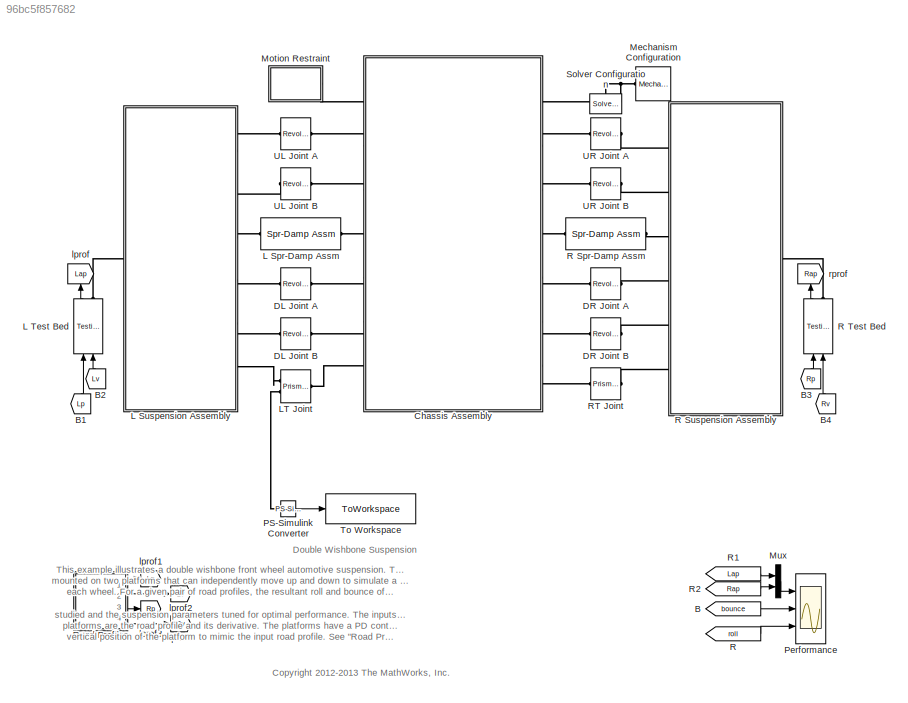
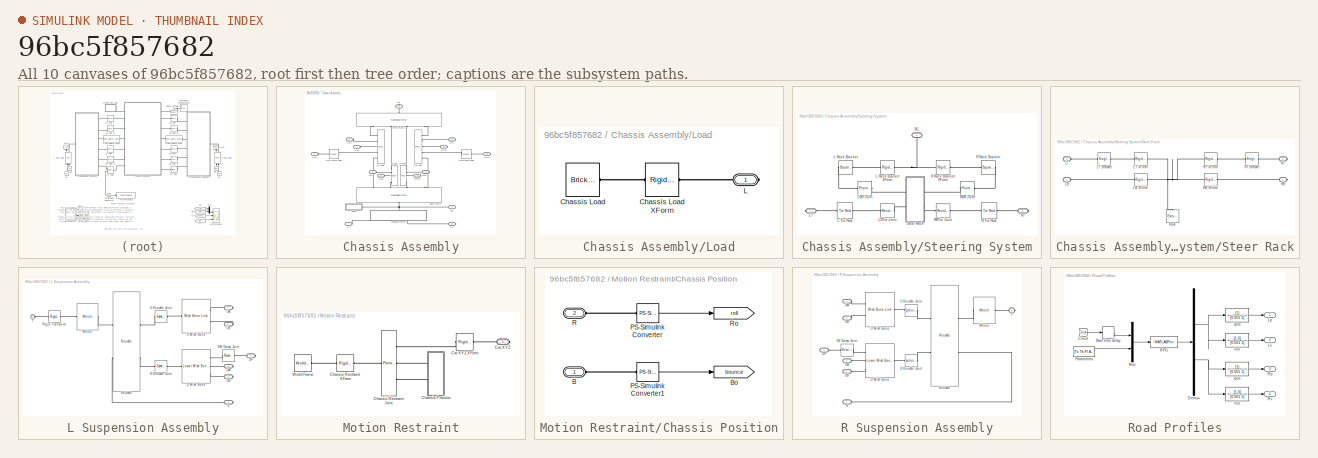
[diagram: thumbnail index - all 10 canvases of the model, root first then tree order]
MODEL slx_96bc5f857682
KIND model
CONFIG AbsTol = auto
CONFIG EnableMultiTasking = on
CONFIG FixedStep = auto
CONFIG MaxStep = 0.01
CONFIG MinStep = auto
CONFIG RelTol = 1e-3
CONFIG SampleTimeConstraint = Unconstrained
CONFIG Solver = ode15s
CONFIG SolverName = ode15s
CONFIG StartTime = 0.0
CONFIG StopTime = 60
WORKSPACE source: MATLAB code (in-file)
WORKSPACE dgrey = [0.3 0.3 0.3]
WORKSPACE lgrey = [0.6 0.6 0.6]
WORKSPACE orange = [255 140 0]/255
WORKSPACE blue = [0.0 0.6 0.8]
WORKSPACE brown = [0.3 0.2 0.0]
WORKSPACE lbrown = [167 108 52]/255
WORKSPACE yellow = [0.9 0.7 0.2]
WORKSPACE red = [1.0 0.2 0.2]
WORKSPACE black = [0 0 0]
WORKSPACE rho_alum = 2700
BLOCK [From] B
  GotoTag = bounce
  TagVisibility = global
BLOCK [From] B1
  GotoTag = Lp
  NameLocation = right
BLOCK [From] B2
  GotoTag = Lv
  NameLocation = right
BLOCK [From] B3
  GotoTag = Rp
  NameLocation = right
BLOCK [From] B4
  GotoTag = Rv
  NameLocation = right
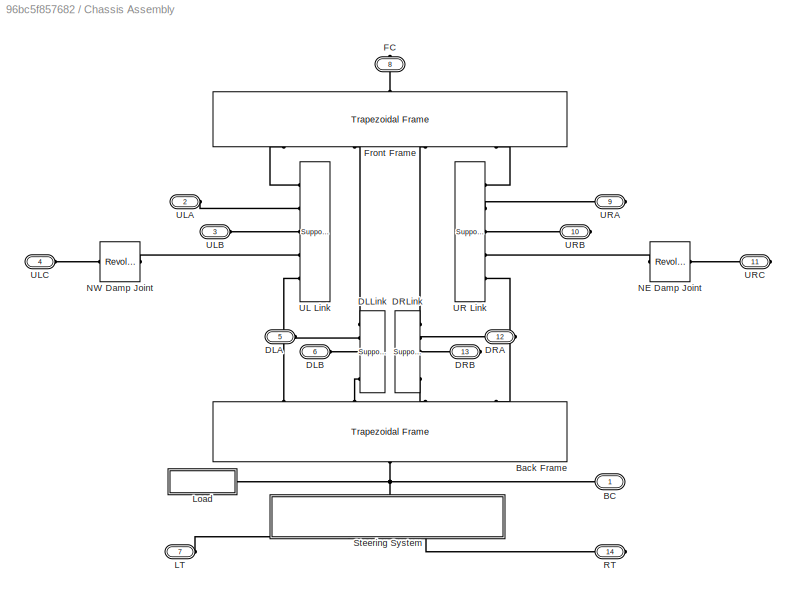
BLOCK [SubSystem] Chassis Assembly
  Ports = [0, 0, 0, 0, 0, 7, 7]
  RequestExecContextInheritance = off
BLOCK [PMIOPort] Chassis Assembly/BC
  Side = Left
BLOCK [Reference] Chassis Assembly/Back Frame  REF=sm_double_wishbone_suspension_lib/Trapezoidal Frame
  NameLocation = right
  Ports = [0, 0, 0, 0, 0, 4, 1]
  SourceBlock = sm_double_wishbone_suspension_lib/Trapezoidal Frame
  SourceProductBaseCode = MS
  SourceType = Trapeziodal Frame
BLOCK [PMIOPort] Chassis Assembly/DLA
  Port = 5
  Side = Left
BLOCK [PMIOPort] Chassis Assembly/DLB
  Port = 6
  Side = Left
BLOCK [Reference] Chassis Assembly/DLLink  REF=sm_double_wishbone_suspension_lib/Support Link
  NameLocation = top
  Ports = [0, 0, 0, 0, 0, 5]
  SourceBlock = sm_double_wishbone_suspension_lib/Support Link
  SourceProductBaseCode = MS
  SourceType = Support Link
BLOCK [PMIOPort] Chassis Assembly/DRA
  Port = 12
  Side = Right
BLOCK [PMIOPort] Chassis Assembly/DRB
  Port = 13
  Side = Right
BLOCK [Reference] Chassis Assembly/DRLink  REF=sm_double_wishbone_suspension_lib/Support Link
  NameLocation = top
  Ports = [0, 0, 0, 0, 0, 5]
  SourceBlock = sm_double_wishbone_suspension_lib/Support Link
  SourceProductBaseCode = MS
  SourceType = Support Link
BLOCK [PMIOPort] Chassis Assembly/FC
  NameLocation = right
  Port = 8
  Side = Right
BLOCK [Reference] Chassis Assembly/Front Frame  REF=sm_double_wishbone_suspension_lib/Trapezoidal Frame
  NameLocation = right
  Ports = [0, 0, 0, 0, 0, 4, 1]
  SourceBlock = sm_double_wishbone_suspension_lib/Trapezoidal Frame
  SourceProductBaseCode = MS
  SourceType = Trapeziodal Frame
BLOCK [PMIOPort] Chassis Assembly/LT
  Port = 7
  Side = Left
BLOCK [SubSystem] Chassis Assembly/Load
  Ports = [0, 0, 0, 0, 0, 0, 1]
  RequestExecContextInheritance = off
BLOCK [Reference] Chassis Assembly/Load/Chassis Load  REF=sm_lib/Body Elements/Brick Solid
  NameLocation = top
  Ports = [0, 0, 0, 0, 0, 0, 1]
  SourceBlock = sm_lib/Body Elements/Brick Solid
  SourceProductBaseCode = MS
  SourceType = Brick Solid
BLOCK [Reference] Chassis Assembly/Load/Chassis Load XForm  REF=sm_lib/Frames and
Transforms/Rigid
Transform
  NameLocation = top
  Ports = [0, 0, 0, 0, 0, 1, 1]
  SourceBlock = sm_lib/Frames and\nTransforms/Rigid\nTransform
  SourceProductBaseCode = MS
  SourceType = Rigid\nTransform
BLOCK [PMIOPort] Chassis Assembly/Load/L
  Side = Right
BLOCK [Reference] Chassis Assembly/NE Damp Joint  REF=sm_lib/Joints/Revolute Joint
  Ports = [0, 0, 0, 0, 0, 1, 1]
  SourceBlock = sm_lib/Joints/Revolute Joint
  SourceProductBaseCode = MS
  SourceType = Revolute Joint
BLOCK [Reference] Chassis Assembly/NW Damp Joint  REF=sm_lib/Joints/Revolute Joint
  Ports = [0, 0, 0, 0, 0, 1, 1]
  SourceBlock = sm_lib/Joints/Revolute Joint
  SourceProductBaseCode = MS
  SourceType = Revolute Joint
BLOCK [PMIOPort] Chassis Assembly/RT
  Port = 14
  Side = Right
BLOCK [SubSystem] Chassis Assembly/Steering System
  NameLocation = left
  Ports = [0, 0, 0, 0, 0, 1, 2]
  RequestExecContextInheritance = off
BLOCK [PMIOPort] Chassis Assembly/Steering System/BC
  NameLocation = right
  Side = Left
BLOCK [Reference] Chassis Assembly/Steering System/L Rack Bracket  REF=sm_double_wishbone_suspension_lib/Square Hole
Bracket
  Ports = [0, 0, 0, 0, 0, 1, 1]
  SourceBlock = sm_double_wishbone_suspension_lib/Square Hole\nBracket
  SourceProductBaseCode = MS
  SourceType = Bracket
BLOCK [Reference] Chassis Assembly/Steering System/L Rack Bracket XForm  REF=sm_lib/Frames and
Transforms/Rigid
Transform
  Ports = [0, 0, 0, 0, 0, 1, 1]
  SourceBlock = sm_lib/Frames and\nTransforms/Rigid\nTransform
  SourceProductBaseCode = MS
  SourceType = Rigid\nTransform
BLOCK [Reference] Chassis Assembly/Steering System/L Tie Rod  REF=sm_double_wishbone_suspension_lib/Tie Rod
  Ports = [0, 0, 0, 0, 0, 1, 1]
  SourceBlock = sm_double_wishbone_suspension_lib/Tie Rod
  SourceProductBaseCode = MS
  SourceType = Tie rod
BLOCK [Reference] Chassis Assembly/Steering System/LBR Joint  REF=sm_lib/Joints/Prismatic
Joint
  Ports = [0, 0, 0, 0, 0, 1, 1]
  SourceBlock = sm_lib/Joints/Prismatic\nJoint
  SourceProductBaseCode = MS
  SourceType = Prismatic\nJoint
BLOCK [Reference] Chassis Assembly/Steering System/LRTie Joint  REF=sm_lib/Joints/Revolute Joint
  Ports = [0, 0, 0, 0, 0, 1, 1]
  SourceBlock = sm_lib/Joints/Revolute Joint
  SourceProductBaseCode = MS
  SourceType = Revolute Joint
BLOCK [PMIOPort] Chassis Assembly/Steering System/LT
  Port = 2
  Side = Right
BLOCK [Reference] Chassis Assembly/Steering System/R Rack Bracket  REF=sm_double_wishbone_suspension_lib/Square Hole
Bracket
  Ports = [0, 0, 0, 0, 0, 1, 1]
  SourceBlock = sm_double_wishbone_suspension_lib/Square Hole\nBracket
  SourceProductBaseCode = MS
  SourceType = Bracket
BLOCK [Reference] Chassis Assembly/Steering System/R Rack Bracket XForm  REF=sm_lib/Frames and
Transforms/Rigid
Transform
  Ports = [0, 0, 0, 0, 0, 1, 1]
  SourceBlock = sm_lib/Frames and\nTransforms/Rigid\nTransform
  SourceProductBaseCode = MS
  SourceType = Rigid\nTransform
BLOCK [Reference] Chassis Assembly/Steering System/R Tie Rod  REF=sm_double_wishbone_suspension_lib/Tie Rod
  Ports = [0, 0, 0, 0, 0, 1, 1]
  SourceBlock = sm_double_wishbone_suspension_lib/Tie Rod
  SourceProductBaseCode = MS
  SourceType = Tie rod
BLOCK [Reference] Chassis Assembly/Steering System/RBR Joint  REF=sm_lib/Joints/Prismatic
Joint
  Ports = [0, 0, 0, 0, 0, 1, 1]
  SourceBlock = sm_lib/Joints/Prismatic\nJoint
  SourceProductBaseCode = MS
  SourceType = Prismatic\nJoint
BLOCK [Reference] Chassis Assembly/Steering System/RRTie Joint  REF=sm_lib/Joints/Revolute Joint
  Ports = [0, 0, 0, 0, 0, 1, 1]
  SourceBlock = sm_lib/Joints/Revolute Joint
  SourceProductBaseCode = MS
  SourceType = Revolute Joint
BLOCK [PMIOPort] Chassis Assembly/Steering System/RT
  Port = 3
  Side = Right
BLOCK [SubSystem] Chassis Assembly/Steering System/Steer Rack
  Ports = [0, 0, 0, 0, 0, 2, 2]
  RequestExecContextInheritance = off
BLOCK [PMIOPort] Chassis Assembly/Steering System/Steer Rack/LB
  NameLocation = top
  Side = Left
BLOCK [Reference] Chassis Assembly/Steering System/Steer Rack/LB XForm  REF=sm_lib/Frames and
Transforms/Rigid
Transform
  Ports = [0, 0, 0, 0, 0, 1, 1]
  SourceBlock = sm_lib/Frames and\nTransforms/Rigid\nTransform
  SourceProductBaseCode = MS
  SourceType = Rigid\nTransform
BLOCK [PMIOPort] Chassis Assembly/Steering System/Steer Rack/LT
  Port = 2
  Side = Left
BLOCK [Reference] Chassis Assembly/Steering System/Steer Rack/LT Bracket  REF=sm_double_wishbone_suspension_lib/Single
Bracket
  NameLocation = top
  Ports = [0, 0, 0, 0, 0, 1, 1]
  SourceBlock = sm_double_wishbone_suspension_lib/Single\nBracket
  SourceProductBaseCode = MS
  SourceType = Bracket
BLOCK [Reference] Chassis Assembly/Steering System/Steer Rack/LT XForm  REF=sm_lib/Frames and
Transforms/Rigid
Transform
  NameLocation = top
  Ports = [0, 0, 0, 0, 0, 1, 1]
  SourceBlock = sm_lib/Frames and\nTransforms/Rigid\nTransform
  SourceProductBaseCode = MS
  SourceType = Rigid\nTransform
BLOCK [PMIOPort] Chassis Assembly/Steering System/Steer Rack/RB
  NameLocation = top
  Port = 3
  Side = Right
BLOCK [Reference] Chassis Assembly/Steering System/Steer Rack/RB XForm  REF=sm_lib/Frames and
Transforms/Rigid
Transform
  Ports = [0, 0, 0, 0, 0, 1, 1]
  SourceBlock = sm_lib/Frames and\nTransforms/Rigid\nTransform
  SourceProductBaseCode = MS
  SourceType = Rigid\nTransform
BLOCK [PMIOPort] Chassis Assembly/Steering System/Steer Rack/RT
  Port = 4
  Side = Right
BLOCK [Reference] Chassis Assembly/Steering System/Steer Rack/RT Bracket  REF=sm_double_wishbone_suspension_lib/Single
Bracket
  NameLocation = top
  Ports = [0, 0, 0, 0, 0, 1, 1]
  SourceBlock = sm_double_wishbone_suspension_lib/Single\nBracket
  SourceProductBaseCode = MS
  SourceType = Bracket
BLOCK [Reference] Chassis Assembly/Steering System/Steer Rack/RT XForm  REF=sm_lib/Frames and
Transforms/Rigid
Transform
  NameLocation = top
  Ports = [0, 0, 0, 0, 0, 1, 1]
  SourceBlock = sm_lib/Frames and\nTransforms/Rigid\nTransform
  SourceProductBaseCode = MS
  SourceType = Rigid\nTransform
BLOCK [Reference] Chassis Assembly/Steering System/Steer Rack/Rack  REF=sm_lib/Body Elements/Extruded Solid
  NameLocation = right
  Ports = [0, 0, 0, 0, 0, 0, 1]
  SourceBlock = sm_lib/Body Elements/Extruded Solid
  SourceProductBaseCode = MS
  SourceType = Extruded Solid
BLOCK [Reference] Chassis Assembly/UL Link  REF=sm_double_wishbone_suspension_lib/Support Link
  Ports = [0, 0, 0, 0, 0, 5]
  SourceBlock = sm_double_wishbone_suspension_lib/Support Link
  SourceProductBaseCode = MS
  SourceType = Support Link
BLOCK [PMIOPort] Chassis Assembly/ULA
  Port = 2
  Side = Left
BLOCK [PMIOPort] Chassis Assembly/ULB
  Port = 3
  Side = Left
BLOCK [PMIOPort] Chassis Assembly/ULC
  Port = 4
  Side = Left
BLOCK [Reference] Chassis Assembly/UR Link  REF=sm_double_wishbone_suspension_lib/Support Link
  Ports = [0, 0, 0, 0, 0, 5]
  SourceBlock = sm_double_wishbone_suspension_lib/Support Link
  SourceProductBaseCode = MS
  SourceType = Support Link
BLOCK [PMIOPort] Chassis Assembly/URA
  Port = 9
  Side = Right
BLOCK [PMIOPort] Chassis Assembly/URB
  Port = 10
  Side = Right
BLOCK [PMIOPort] Chassis Assembly/URC
  Port = 11
  Side = Right
BLOCK [Reference] DL Joint A  REF=sm_lib/Joints/Revolute Joint
  Ports = [0, 0, 0, 0, 0, 1, 1]
  SourceBlock = sm_lib/Joints/Revolute Joint
  SourceProductBaseCode = MS
  SourceType = Revolute Joint
BLOCK [Reference] DL Joint B  REF=sm_lib/Joints/Revolute Joint
  Ports = [0, 0, 0, 0, 0, 1, 1]
  SourceBlock = sm_lib/Joints/Revolute Joint
  SourceProductBaseCode = MS
  SourceType = Revolute Joint
BLOCK [Reference] DR Joint A  REF=sm_lib/Joints/Revolute Joint
  Ports = [0, 0, 0, 0, 0, 1, 1]
  SourceBlock = sm_lib/Joints/Revolute Joint
  SourceProductBaseCode = MS
  SourceType = Revolute Joint
BLOCK [Reference] DR Joint B  REF=sm_lib/Joints/Revolute Joint
  Ports = [0, 0, 0, 0, 0, 1, 1]
  SourceBlock = sm_lib/Joints/Revolute Joint
  SourceProductBaseCode = MS
  SourceType = Revolute Joint
BLOCK [Reference] L Spr-Damp Assm  REF=sm_double_wishbone_suspension_lib/Spr-Damp Assm
  Ports = [0, 0, 0, 0, 0, 1, 1]
  SourceBlock = sm_double_wishbone_suspension_lib/Spr-Damp Assm
  SourceProductBaseCode = MS
  SourceType = Spring-Damper
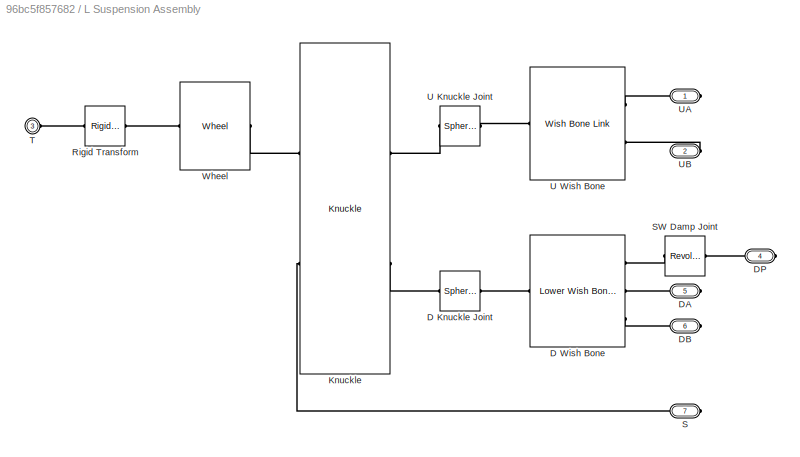
BLOCK [SubSystem] L Suspension Assembly
  Ports = [0, 0, 0, 0, 0, 1, 6]
  RequestExecContextInheritance = off
BLOCK [Reference] L Suspension Assembly/D Knuckle Joint  REF=sm_lib/Joints/Spherical
Joint
  Ports = [0, 0, 0, 0, 0, 1, 1]
  SourceBlock = sm_lib/Joints/Spherical\nJoint
  SourceProductBaseCode = MS
  SourceType = Spherical\nJoint
BLOCK [Reference] L Suspension Assembly/D Wish Bone  REF=sm_double_wishbone_suspension_lib/Lower Wish Bone Link
  NameLocation = top
  Ports = [0, 0, 0, 0, 0, 3, 1]
  SourceBlock = sm_double_wishbone_suspension_lib/Lower Wish Bone Link
  SourceProductBaseCode = MS
  SourceType = Upper Wishbone Link
BLOCK [PMIOPort] L Suspension Assembly/DA
  Port = 5
  Side = Right
BLOCK [PMIOPort] L Suspension Assembly/DB
  Port = 6
  Side = Right
BLOCK [PMIOPort] L Suspension Assembly/DP
  Port = 4
  Side = Right
BLOCK [Reference] L Suspension Assembly/Knuckle  REF=sm_double_wishbone_suspension_lib/Knuckle
  Ports = [0, 0, 0, 0, 0, 2, 2]
  SourceBlock = sm_double_wishbone_suspension_lib/Knuckle
  SourceProductBaseCode = MS
  SourceType = Steering knuckle
BLOCK [Reference] L Suspension Assembly/Rigid Transform  REF=sm_lib/Frames and
Transforms/Rigid
Transform
  NameLocation = top
  Ports = [0, 0, 0, 0, 0, 1, 1]
  SourceBlock = sm_lib/Frames and\nTransforms/Rigid\nTransform
  SourceProductBaseCode = MS
  SourceType = Rigid\nTransform
BLOCK [PMIOPort] L Suspension Assembly/S
  Port = 7
  Side = Right
BLOCK [Reference] L Suspension Assembly/SW Damp Joint  REF=sm_lib/Joints/Revolute Joint
  NameLocation = top
  Ports = [0, 0, 0, 0, 0, 1, 1]
  SourceBlock = sm_lib/Joints/Revolute Joint
  SourceProductBaseCode = MS
  SourceType = Revolute Joint
BLOCK [PMIOPort] L Suspension Assembly/T
  Port = 3
  Side = Left
BLOCK [Reference] L Suspension Assembly/U Knuckle Joint  REF=sm_lib/Joints/Spherical
Joint
  Ports = [0, 0, 0, 0, 0, 1, 1]
  SourceBlock = sm_lib/Joints/Spherical\nJoint
  SourceProductBaseCode = MS
  SourceType = Spherical\nJoint
BLOCK [Reference] L Suspension Assembly/U Wish Bone  REF=sm_double_wishbone_suspension_lib/Wish Bone Link
  NameLocation = top
  Ports = [0, 0, 0, 0, 0, 2, 1]
  SourceBlock = sm_double_wishbone_suspension_lib/Wish Bone Link
  SourceProductBaseCode = MS
  SourceType = Upper Wishbone Link
BLOCK [PMIOPort] L Suspension Assembly/UA
  Side = Right
BLOCK [PMIOPort] L Suspension Assembly/UB
  Port = 2
  Side = Right
BLOCK [Reference] L Suspension Assembly/Wheel  REF=sm_double_wishbone_suspension_lib/Wheel
  NameLocation = top
  Ports = [0, 0, 0, 0, 0, 1, 1]
  SourceBlock = sm_double_wishbone_suspension_lib/Wheel
  SourceProductBaseCode = MS
  SourceType = Wheel
BLOCK [Reference] L Test Bed  REF=sm_double_wishbone_suspension_lib/Testing
Platform
  NameLocation = right
  Ports = [2, 1, 0, 0, 0, 0, 1]
  SourceBlock = sm_double_wishbone_suspension_lib/Testing\nPlatform
  SourceProductBaseCode = MS
  SourceType = Suspension Test Platform
BLOCK [Reference] LT Joint  REF=sm_lib/Joints/Prismatic
Joint
  Ports = [0, 0, 0, 0, 0, 1, 2]
  SourceBlock = sm_lib/Joints/Prismatic\nJoint
  SourceProductBaseCode = MS
  SourceType = Prismatic\nJoint
BLOCK [Reference] Mechanism Configuration  REF=sm_lib/Utilities/Mechanism
Configuration
  NameLocation = top
  Ports = [0, 0, 0, 0, 0, 0, 1]
  SourceBlock = sm_lib/Utilities/Mechanism\nConfiguration
  SourceProductBaseCode = MS
  SourceType = Mechanism\nConfiguration
BLOCK [SubSystem] Motion Restraint
  Ports = [0, 0, 0, 0, 0, 0, 1]
  RequestExecContextInheritance = off
BLOCK [PMIOPort] Motion Restraint/Car XYZ
  Side = Right
BLOCK [Reference] Motion Restraint/Car XYZ XForm  REF=sm_lib/Frames and
Transforms/Rigid
Transform
  Ports = [0, 0, 0, 0, 0, 1, 1]
  SourceBlock = sm_lib/Frames and\nTransforms/Rigid\nTransform
  SourceProductBaseCode = MS
  SourceType = Rigid\nTransform
BLOCK [SubSystem] Motion Restraint/Chassis Position
  Ports = [0, 0, 0, 0, 0, 2]
  RequestExecContextInheritance = off
BLOCK [PMIOPort] Motion Restraint/Chassis Position/B
  NameLocation = top
  Side = Left
BLOCK [Goto] Motion Restraint/Chassis Position/Bo
  GotoTag = bounce
  TagVisibility = global
BLOCK [Reference] Motion Restraint/Chassis Position/PS-Simulink Converter  REF=nesl_utility/PS-Simulink
Converter
  Ports = [0, 1, 0, 0, 0, 1]
  SourceBlock = nesl_utility/PS-Simulink\nConverter
  SourceProductBaseCode = SS
  SourceType = PS-Simulink\nConverter
BLOCK [Reference] Motion Restraint/Chassis Position/PS-Simulink Converter1  REF=nesl_utility/PS-Simulink
Converter
  Ports = [0, 1, 0, 0, 0, 1]
  SourceBlock = nesl_utility/PS-Simulink\nConverter
  SourceProductBaseCode = SS
  SourceType = PS-Simulink\nConverter
BLOCK [PMIOPort] Motion Restraint/Chassis Position/R
  NameLocation = top
  Port = 2
  Side = Left
BLOCK [Goto] Motion Restraint/Chassis Position/Ro
  GotoTag = roll
  TagVisibility = global
BLOCK [Reference] Motion Restraint/Chassis Restraint Joint  REF=sm_lib/Joints/Planar Joint
  Ports = [0, 0, 0, 0, 0, 1, 3]
  SourceBlock = sm_lib/Joints/Planar Joint
  SourceProductBaseCode = MS
  SourceType = Planar Joint
BLOCK [Reference] Motion Restraint/Chassis Restraint XForm  REF=sm_lib/Frames and
Transforms/Rigid
Transform
  NameLocation = top
  Ports = [0, 0, 0, 0, 0, 1, 1]
  SourceBlock = sm_lib/Frames and\nTransforms/Rigid\nTransform
  SourceProductBaseCode = MS
  SourceType = Rigid\nTransform
BLOCK [Reference] Motion Restraint/World Frame  REF=sm_lib/Frames and
Transforms/World Frame
  NameLocation = top
  Ports = [0, 0, 0, 0, 0, 0, 1]
  SourceBlock = sm_lib/Frames and\nTransforms/World Frame
  SourceProductBaseCode = MS
  SourceType = World Frame
BLOCK [Mux] Mux
  DisplayOption = bar
  Inputs = 2
  Ports = [2, 1]
BLOCK [Reference] PS-Simulink Converter  REF=nesl_utility/PS-Simulink
Converter
  Ports = [0, 1, 0, 0, 0, 1]
  SourceBlock = nesl_utility/PS-Simulink\nConverter
  SourceProductBaseCode = SS
  SourceType = PS-Simulink\nConverter
BLOCK [Scope] Performance
  Floating = off
  NameLocation = top
  NumInputPorts = 3
  Ports = [3]
  ScopeSpecificationString = C++SS(StrPVP('Location','[267, 106, 869, 573]'),StrPVP('Open','off'),MxPVP('AxesTitles',54,'struct(''axes1'',''Left (yellow) and Right Road Profiles (cm)'',''axes2'',''Chassis Bounce (cm)'',''axes3'',''Chassis Roll (deg)'')'),MxPVP('ScopeGraphics',57,'struct(''FigureColor'',''[0.156862745098039 0.156862745098039 0.156862745098039]'',''AxesColor'',''[0 0 0]'',''AxesTickColor'',''[0.686274509803922 ...<+474ch>
BLOCK [From] R
  GotoTag = roll
  TagVisibility = global
BLOCK [Reference] R Spr-Damp Assm  REF=sm_double_wishbone_suspension_lib/Spr-Damp Assm
  Ports = [0, 0, 0, 0, 0, 1, 1]
  SourceBlock = sm_double_wishbone_suspension_lib/Spr-Damp Assm
  SourceProductBaseCode = MS
  SourceType = Spring-Damper
BLOCK [SubSystem] R Suspension Assembly
  Ports = [0, 0, 0, 0, 0, 6, 1]
  RequestExecContextInheritance = off
BLOCK [Reference] R Suspension Assembly/D Knuckle Joint  REF=sm_lib/Joints/Spherical
Joint
  Ports = [0, 0, 0, 0, 0, 1, 1]
  SourceBlock = sm_lib/Joints/Spherical\nJoint
  SourceProductBaseCode = MS
  SourceType = Spherical\nJoint
BLOCK [Reference] R Suspension Assembly/D Wish Bone  REF=sm_double_wishbone_suspension_lib/Lower Wish Bone Link
  Ports = [0, 0, 0, 0, 0, 3, 1]
  SourceBlock = sm_double_wishbone_suspension_lib/Lower Wish Bone Link
  SourceProductBaseCode = MS
  SourceType = Upper Wishbone Link
BLOCK [PMIOPort] R Suspension Assembly/DA
  Port = 5
  Side = Left
BLOCK [PMIOPort] R Suspension Assembly/DB
  Port = 6
  Side = Left
BLOCK [PMIOPort] R Suspension Assembly/DP
  Port = 4
  Side = Left
BLOCK [Reference] R Suspension Assembly/Knuckle  REF=sm_double_wishbone_suspension_lib/Knuckle
  Ports = [0, 0, 0, 0, 0, 2, 2]
  SourceBlock = sm_double_wishbone_suspension_lib/Knuckle
  SourceProductBaseCode = MS
  SourceType = Steering knuckle
BLOCK [PMIOPort] R Suspension Assembly/S
  NameLocation = top
  Port = 7
  Side = Left
BLOCK [Reference] R Suspension Assembly/SE Damp Joint  REF=sm_lib/Joints/Revolute Joint
  NameLocation = top
  Ports = [0, 0, 0, 0, 0, 1, 1]
  SourceBlock = sm_lib/Joints/Revolute Joint
  SourceProductBaseCode = MS
  SourceType = Revolute Joint
BLOCK [PMIOPort] R Suspension Assembly/T
  NameLocation = top
  Port = 3
  Side = Right
BLOCK [Reference] R Suspension Assembly/U Knuckle Joint  REF=sm_lib/Joints/Spherical
Joint
  Ports = [0, 0, 0, 0, 0, 1, 1]
  SourceBlock = sm_lib/Joints/Spherical\nJoint
  SourceProductBaseCode = MS
  SourceType = Spherical\nJoint
BLOCK [Reference] R Suspension Assembly/U Wish Bone  REF=sm_double_wishbone_suspension_lib/Wish Bone Link
  NameLocation = top
  Ports = [0, 0, 0, 0, 0, 2, 1]
  SourceBlock = sm_double_wishbone_suspension_lib/Wish Bone Link
  SourceProductBaseCode = MS
  SourceType = Upper Wishbone Link
BLOCK [PMIOPort] R Suspension Assembly/UA
  Side = Left
BLOCK [PMIOPort] R Suspension Assembly/UB
  Port = 2
  Side = Left
BLOCK [Reference] R Suspension Assembly/Wheel  REF=sm_double_wishbone_suspension_lib/Wheel
  Ports = [0, 0, 0, 0, 0, 1, 1]
  SourceBlock = sm_double_wishbone_suspension_lib/Wheel
  SourceProductBaseCode = MS
  SourceType = Wheel
BLOCK [Reference] R Test Bed  REF=sm_double_wishbone_suspension_lib/Testing
Platform
  NameLocation = left
  Ports = [2, 1, 0, 0, 0, 0, 1]
  SourceBlock = sm_double_wishbone_suspension_lib/Testing\nPlatform
  SourceProductBaseCode = MS
  SourceType = Suspension Test Platform
BLOCK [From] R1
  GotoTag = Lap
BLOCK [From] R2
  GotoTag = Rap
BLOCK [Reference] RT Joint  REF=sm_lib/Joints/Prismatic
Joint
  Ports = [0, 0, 0, 0, 0, 1, 1]
  SourceBlock = sm_lib/Joints/Prismatic\nJoint
  SourceProductBaseCode = MS
  SourceType = Prismatic\nJoint
BLOCK [SubSystem] Road Profiles
  NameLocation = top
  Ports = [0, 4]
  RequestExecContextInheritance = off
BLOCK [Clock] Road Profiles/Clock
BLOCK [Demux] Road Profiles/Demux
  Outputs = 2
  Ports = [1, 2]
BLOCK [Outport] Road Profiles/Lp
  VectorParamsAs1DForOutWhenUnconnected = off
BLOCK [Outport] Road Profiles/Lv
  Port = 2
  VectorParamsAs1DForOutWhenUnconnected = off
BLOCK [Mux] Road Profiles/Mux
  DisplayOption = bar
  Inputs = 2
  Ports = [2, 1]
BLOCK [Constant] Road Profiles/Parameters
  Value = [Ts Tb Fl Al Fm Am Fh Ah Ps As Pp Wp Ap Ad]
BLOCK [MATLABFcn] Road Profiles/RPG
  MATLABFcn = sm_dwb_roadgen(u)
  Ports = [1, 1]
BLOCK [Outport] Road Profiles/Rp
  Port = 3
  VectorParamsAs1DForOutWhenUnconnected = off
BLOCK [Outport] Road Profiles/Rv
  Port = 4
  VectorParamsAs1DForOutWhenUnconnected = off
BLOCK [TransportDelay] Road Profiles/Start time delay
  DelayTime = Ti
  Ports = [1, 1]
BLOCK [TransferFcn] Road Profiles/lpos
  Denominator = [0.001 1]
BLOCK [TransferFcn] Road Profiles/lvel
  Denominator = [0.001 1]
  Numerator = [1 0]
BLOCK [TransferFcn] Road Profiles/rpos
  Denominator = [0.001 1]
BLOCK [TransferFcn] Road Profiles/rvel
  Denominator = [0.001 1]
  Numerator = [1 0]
BLOCK [Reference] Solver Configuration  REF=nesl_utility/Solver
Configuration
  NameLocation = right
  Ports = [0, 0, 0, 0, 0, 0, 1]
  SourceBlock = nesl_utility/Solver\nConfiguration
  SourceProductBaseCode = SS
  SourceType = Solver\nConfiguration
BLOCK [ToWorkspace] To Workspace
  FixptAsFi = on
  MaxDataPoints = inf
  Ports = [1]
  SampleTime = -1
  SaveFormat = Timeseries
  VariableName = simout
BLOCK [Reference] UL Joint A  REF=sm_lib/Joints/Revolute Joint
  Ports = [0, 0, 0, 0, 0, 1, 1]
  SourceBlock = sm_lib/Joints/Revolute Joint
  SourceProductBaseCode = MS
  SourceType = Revolute Joint
BLOCK [Reference] UL Joint B  REF=sm_lib/Joints/Revolute Joint
  Ports = [0, 0, 0, 0, 0, 1, 1]
  SourceBlock = sm_lib/Joints/Revolute Joint
  SourceProductBaseCode = MS
  SourceType = Revolute Joint
BLOCK [Reference] UR Joint A  REF=sm_lib/Joints/Revolute Joint
  Ports = [0, 0, 0, 0, 0, 1, 1]
  SourceBlock = sm_lib/Joints/Revolute Joint
  SourceProductBaseCode = MS
  SourceType = Revolute Joint
BLOCK [Reference] UR Joint B  REF=sm_lib/Joints/Revolute Joint
  Ports = [0, 0, 0, 0, 0, 1, 1]
  SourceBlock = sm_lib/Joints/Revolute Joint
  SourceProductBaseCode = MS
  SourceType = Revolute Joint
BLOCK [Goto] lprof
  GotoTag = Lap
  NameLocation = right
BLOCK [Goto] lprof1
  GotoTag = Lp
BLOCK [Goto] lprof2
  GotoTag = Lv
BLOCK [Goto] lprof3
  GotoTag = Rp
BLOCK [Goto] lprof4
  GotoTag = Rv
BLOCK [Goto] rprof
  GotoTag = Rap
  NameLocation = right
ANNOTATION (root): <copyright redacted>
ANNOTATION (root): Double Wishbone Suspension
ANNOTATION (root): This example illustrates a double wishbone front wheel automotive suspension. The suspension is mounted on two platforms that can independently move up and down to simulate a road profile on each wheel. For a given pair of road profiles, the resultant roll and bounce of the chassis can be studied and the suspension parameters tuned for optimal performance. The inputs to the two platforms are the r...<+223ch>
LINE B1:1 -> L Test Bed:1
LINE B2:1 -> L Test Bed:2
LINE B3:1 -> R Test Bed:1
LINE B4:1 -> R Test Bed:2
LINE B:1 -> Performance:2
LINE L Test Bed:1 -> lprof:1
LINE Motion Restraint/Chassis Position/PS-Simulink Converter1:1 -> Motion Restraint/Chassis Position/Bo:1
LINE Motion Restraint/Chassis Position/PS-Simulink Converter:1 -> Motion Restraint/Chassis Position/Ro:1
LINE Mux:1 -> Performance:1
LINE PS-Simulink Converter:1 -> To Workspace:1
LINE R Test Bed:1 -> rprof:1
LINE R1:1 -> Mux:1
LINE R2:1 -> Mux:2
LINE R:1 -> Performance:3
LINE Road Profiles/Clock:1 -> Road Profiles/Start time delay:1
NET Road Profiles/Demux:1 -> Road Profiles/lpos:1, Road Profiles/lvel:1
NET Road Profiles/Demux:2 -> Road Profiles/rpos:1, Road Profiles/rvel:1
LINE Road Profiles/Mux:1 -> Road Profiles/RPG:1
LINE Road Profiles/Parameters:1 -> Road Profiles/Mux:2
LINE Road Profiles/RPG:1 -> Road Profiles/Demux:1
LINE Road Profiles/Start time delay:1 -> Road Profiles/Mux:1
LINE Road Profiles/lpos:1 -> Road Profiles/Lp:1
LINE Road Profiles/lvel:1 -> Road Profiles/Lv:1
LINE Road Profiles/rpos:1 -> Road Profiles/Rp:1
LINE Road Profiles/rvel:1 -> Road Profiles/Rv:1
LINE Road Profiles:1 -> lprof1:1
LINE Road Profiles:2 -> lprof2:1
LINE Road Profiles:3 -> lprof3:1
LINE Road Profiles:4 -> lprof4:1
PNET net1: Chassis Assembly/BC:RConn1 -- Chassis Assembly/Back Frame:RConn1 -- Chassis Assembly/Load:RConn1 -- Chassis Assembly/Steering System:LConn1
PLINE Chassis Assembly/Back Frame:LConn1 -- Chassis Assembly/UL Link:LConn5
PLINE Chassis Assembly/Back Frame:LConn2 -- Chassis Assembly/DLLink:LConn5
PLINE Chassis Assembly/Back Frame:LConn3 -- Chassis Assembly/DRLink:LConn5
PLINE Chassis Assembly/Back Frame:LConn4 -- Chassis Assembly/UR Link:LConn5
PLINE Chassis Assembly/DLA:RConn1 -- Chassis Assembly/DLLink:LConn2
PLINE Chassis Assembly/DLB:RConn1 -- Chassis Assembly/DLLink:LConn3
PLINE Chassis Assembly/DLLink:LConn1 -- Chassis Assembly/Front Frame:LConn2
PLINE Chassis Assembly/DRA:RConn1 -- Chassis Assembly/DRLink:LConn2
PLINE Chassis Assembly/DRB:RConn1 -- Chassis Assembly/DRLink:LConn3
PLINE Chassis Assembly/DRLink:LConn1 -- Chassis Assembly/Front Frame:LConn3
PLINE Chassis Assembly/FC:RConn1 -- Chassis Assembly/Front Frame:RConn1
PLINE Chassis Assembly/Front Frame:LConn1 -- Chassis Assembly/UL Link:LConn1
PLINE Chassis Assembly/Front Frame:LConn4 -- Chassis Assembly/UR Link:LConn1
PLINE Chassis Assembly/LT:RConn1 -- Chassis Assembly/Steering System:RConn1
PLINE Chassis Assembly/Load/Chassis Load XForm:LConn1 -- Chassis Assembly/Load/L:RConn1
PLINE Chassis Assembly/Load/Chassis Load XForm:RConn1 -- Chassis Assembly/Load/Chassis Load:RConn1
PLINE Chassis Assembly/NE Damp Joint:LConn1 -- Chassis Assembly/UR Link:LConn4
PLINE Chassis Assembly/NE Damp Joint:RConn1 -- Chassis Assembly/URC:RConn1
PLINE Chassis Assembly/NW Damp Joint:LConn1 -- Chassis Assembly/UL Link:LConn4
PLINE Chassis Assembly/NW Damp Joint:RConn1 -- Chassis Assembly/ULC:RConn1
PLINE Chassis Assembly/RT:RConn1 -- Chassis Assembly/Steering System:RConn2
PNET net2: Chassis Assembly/Steering System/BC:RConn1 -- Chassis Assembly/Steering System/L Rack Bracket XForm:LConn1 -- Chassis Assembly/Steering System/R Rack Bracket XForm:LConn1
PLINE Chassis Assembly/Steering System/L Rack Bracket XForm:RConn1 -- Chassis Assembly/Steering System/L Rack Bracket:LConn1
PLINE Chassis Assembly/Steering System/L Rack Bracket:RConn1 -- Chassis Assembly/Steering System/LBR Joint:LConn1
PLINE Chassis Assembly/Steering System/L Tie Rod:LConn1 -- Chassis Assembly/Steering System/LRTie Joint:RConn1
PLINE Chassis Assembly/Steering System/L Tie Rod:RConn1 -- Chassis Assembly/Steering System/LT:RConn1
PLINE Chassis Assembly/Steering System/LBR Joint:RConn1 -- Chassis Assembly/Steering System/Steer Rack:LConn1
PLINE Chassis Assembly/Steering System/LRTie Joint:LConn1 -- Chassis Assembly/Steering System/Steer Rack:LConn2
PLINE Chassis Assembly/Steering System/R Rack Bracket XForm:RConn1 -- Chassis Assembly/Steering System/R Rack Bracket:LConn1
PLINE Chassis Assembly/Steering System/R Rack Bracket:RConn1 -- Chassis Assembly/Steering System/RBR Joint:RConn1
PLINE Chassis Assembly/Steering System/R Tie Rod:LConn1 -- Chassis Assembly/Steering System/RRTie Joint:RConn1
PLINE Chassis Assembly/Steering System/R Tie Rod:RConn1 -- Chassis Assembly/Steering System/RT:RConn1
PLINE Chassis Assembly/Steering System/RBR Joint:LConn1 -- Chassis Assembly/Steering System/Steer Rack:RConn1
PLINE Chassis Assembly/Steering System/RRTie Joint:LConn1 -- Chassis Assembly/Steering System/Steer Rack:RConn2
PNET net3: Chassis Assembly/Steering System/Steer Rack/LB XForm:LConn1 -- Chassis Assembly/Steering System/Steer Rack/LT XForm:LConn1 -- Chassis Assembly/Steering System/Steer Rack/RB XForm:LConn1 -- Chassis Assembly/Steering System/Steer Rack/RT XForm:LConn1 -- Chassis Assembly/Steering System/Steer Rack/Rack:RConn1
PLINE Chassis Assembly/Steering System/Steer Rack/LB XForm:RConn1 -- Chassis Assembly/Steering System/Steer Rack/LB:RConn1
PLINE Chassis Assembly/Steering System/Steer Rack/LT Bracket:LConn1 -- Chassis Assembly/Steering System/Steer Rack/LT:RConn1
PLINE Chassis Assembly/Steering System/Steer Rack/LT Bracket:RConn1 -- Chassis Assembly/Steering System/Steer Rack/LT XForm:RConn1
PLINE Chassis Assembly/Steering System/Steer Rack/RB XForm:RConn1 -- Chassis Assembly/Steering System/Steer Rack/RB:RConn1
PLINE Chassis Assembly/Steering System/Steer Rack/RT Bracket:LConn1 -- Chassis Assembly/Steering System/Steer Rack/RT:RConn1
PLINE Chassis Assembly/Steering System/Steer Rack/RT Bracket:RConn1 -- Chassis Assembly/Steering System/Steer Rack/RT XForm:RConn1
PLINE Chassis Assembly/UL Link:LConn2 -- Chassis Assembly/ULA:RConn1
PLINE Chassis Assembly/UL Link:LConn3 -- Chassis Assembly/ULB:RConn1
PLINE Chassis Assembly/UR Link:LConn2 -- Chassis Assembly/URA:RConn1
PLINE Chassis Assembly/UR Link:LConn3 -- Chassis Assembly/URB:RConn1
PLINE Chassis Assembly:LConn1 -- Motion Restraint:RConn1
PLINE Chassis Assembly:LConn2 -- UL Joint A:LConn1
PLINE Chassis Assembly:LConn3 -- UL Joint B:LConn1
PLINE Chassis Assembly:LConn4 -- L Spr-Damp Assm:LConn1
PLINE Chassis Assembly:LConn5 -- DL Joint A:LConn1
PLINE Chassis Assembly:LConn6 -- DL Joint B:LConn1
PLINE Chassis Assembly:LConn7 -- LT Joint:LConn1
PNET net4: Chassis Assembly:RConn1 -- Mechanism Configuration:RConn1 -- Solver Configuration:RConn1
PLINE Chassis Assembly:RConn2 -- UR Joint A:LConn1
PLINE Chassis Assembly:RConn3 -- UR Joint B:LConn1
PLINE Chassis Assembly:RConn4 -- R Spr-Damp Assm:LConn1
PLINE Chassis Assembly:RConn5 -- DR Joint A:LConn1
PLINE Chassis Assembly:RConn6 -- DR Joint B:LConn1
PLINE Chassis Assembly:RConn7 -- RT Joint:LConn1
PLINE DL Joint A:RConn1 -- L Suspension Assembly:RConn4
PLINE DL Joint B:RConn1 -- L Suspension Assembly:RConn5
PLINE DR Joint A:RConn1 -- R Suspension Assembly:LConn4
PLINE DR Joint B:RConn1 -- R Suspension Assembly:LConn5
PLINE L Spr-Damp Assm:RConn1 -- L Suspension Assembly:RConn3
PLINE L Suspension Assembly/D Knuckle Joint:LConn1 -- L Suspension Assembly/D Wish Bone:RConn1
PLINE L Suspension Assembly/D Knuckle Joint:RConn1 -- L Suspension Assembly/Knuckle:RConn2
PLINE L Suspension Assembly/D Wish Bone:LConn1 -- L Suspension Assembly/SW Damp Joint:LConn1
PLINE L Suspension Assembly/D Wish Bone:LConn2 -- L Suspension Assembly/DA:RConn1
PLINE L Suspension Assembly/D Wish Bone:LConn3 -- L Suspension Assembly/DB:RConn1
PLINE L Suspension Assembly/DP:RConn1 -- L Suspension Assembly/SW Damp Joint:RConn1
PLINE L Suspension Assembly/Knuckle:LConn1 -- L Suspension Assembly/Wheel:LConn1
PLINE L Suspension Assembly/Knuckle:LConn2 -- L Suspension Assembly/S:RConn1
PLINE L Suspension Assembly/Knuckle:RConn1 -- L Suspension Assembly/U Knuckle Joint:RConn1
PLINE L Suspension Assembly/Rigid Transform:LConn1 -- L Suspension Assembly/Wheel:RConn1
PLINE L Suspension Assembly/Rigid Transform:RConn1 -- L Suspension Assembly/T:RConn1
PLINE L Suspension Assembly/U Knuckle Joint:LConn1 -- L Suspension Assembly/U Wish Bone:RConn1
PLINE L Suspension Assembly/U Wish Bone:LConn1 -- L Suspension Assembly/UA:RConn1
PLINE L Suspension Assembly/U Wish Bone:LConn2 -- L Suspension Assembly/UB:RConn1
PLINE L Suspension Assembly:LConn1 -- L Test Bed:RConn1
PLINE L Suspension Assembly:RConn1 -- UL Joint A:RConn1
PLINE L Suspension Assembly:RConn2 -- UL Joint B:RConn1
PLINE L Suspension Assembly:RConn6 -- LT Joint:RConn1
PLINE LT Joint:RConn2 -- PS-Simulink Converter:LConn1
PLINE Motion Restraint/Car XYZ XForm:LConn1 -- Motion Restraint/Chassis Restraint Joint:RConn1
PLINE Motion Restraint/Car XYZ XForm:RConn1 -- Motion Restraint/Car XYZ:RConn1
PLINE Motion Restraint/Chassis Position/B:RConn1 -- Motion Restraint/Chassis Position/PS-Simulink Converter1:LConn1
PLINE Motion Restraint/Chassis Position/PS-Simulink Converter:LConn1 -- Motion Restraint/Chassis Position/R:RConn1
PLINE Motion Restraint/Chassis Position:LConn1 -- Motion Restraint/Chassis Restraint Joint:RConn2
PLINE Motion Restraint/Chassis Position:LConn2 -- Motion Restraint/Chassis Restraint Joint:RConn3
PLINE Motion Restraint/Chassis Restraint Joint:LConn1 -- Motion Restraint/Chassis Restraint XForm:RConn1
PLINE Motion Restraint/Chassis Restraint XForm:LConn1 -- Motion Restraint/World Frame:RConn1
PLINE R Spr-Damp Assm:RConn1 -- R Suspension Assembly:LConn3
PLINE R Suspension Assembly/D Knuckle Joint:LConn1 -- R Suspension Assembly/D Wish Bone:RConn1
PLINE R Suspension Assembly/D Knuckle Joint:RConn1 -- R Suspension Assembly/Knuckle:RConn2
PLINE R Suspension Assembly/D Wish Bone:LConn1 -- R Suspension Assembly/SE Damp Joint:RConn1
PLINE R Suspension Assembly/D Wish Bone:LConn2 -- R Suspension Assembly/DA:RConn1
PLINE R Suspension Assembly/D Wish Bone:LConn3 -- R Suspension Assembly/DB:RConn1
PLINE R Suspension Assembly/DP:RConn1 -- R Suspension Assembly/SE Damp Joint:LConn1
PLINE R Suspension Assembly/Knuckle:LConn1 -- R Suspension Assembly/Wheel:LConn1
PLINE R Suspension Assembly/Knuckle:LConn2 -- R Suspension Assembly/S:RConn1
PLINE R Suspension Assembly/Knuckle:RConn1 -- R Suspension Assembly/U Knuckle Joint:RConn1
PLINE R Suspension Assembly/T:RConn1 -- R Suspension Assembly/Wheel:RConn1
PLINE R Suspension Assembly/U Knuckle Joint:LConn1 -- R Suspension Assembly/U Wish Bone:RConn1
PLINE R Suspension Assembly/U Wish Bone:LConn1 -- R Suspension Assembly/UA:RConn1
PLINE R Suspension Assembly/U Wish Bone:LConn2 -- R Suspension Assembly/UB:RConn1
PLINE R Suspension Assembly:LConn1 -- UR Joint A:RConn1
PLINE R Suspension Assembly:LConn2 -- UR Joint B:RConn1
PLINE R Suspension Assembly:LConn6 -- RT Joint:RConn1
PLINE R Suspension Assembly:RConn1 -- R Test Bed:RConn1
note: NET lines group one-source signal fan-out (src -> all destinations, sorted); 1:1 wires keep LINE; PNET lines group multi-terminal physical nets as a canonical sorted terminal list (undirected conserving connections); 2-terminal nets keep the pairwise PLINE form
